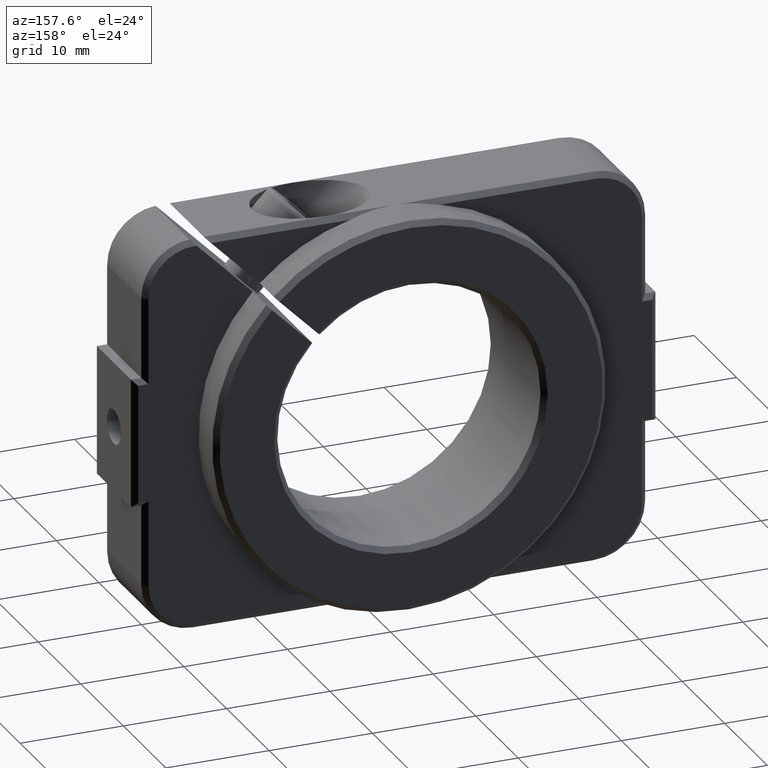
[diagram: clean part render]
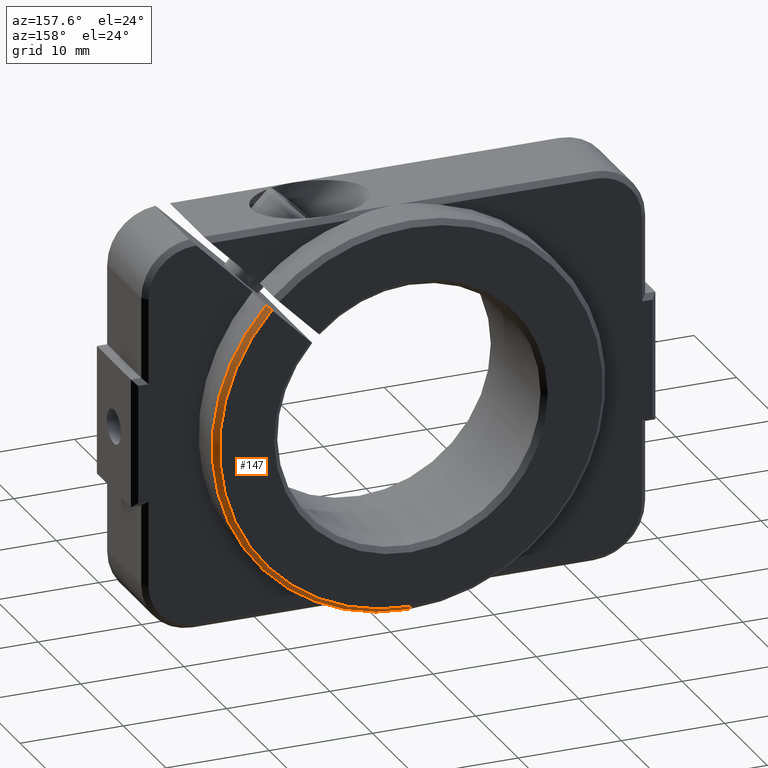
[diagram: same view with one face highlighted and labeled with its STEP entity id]
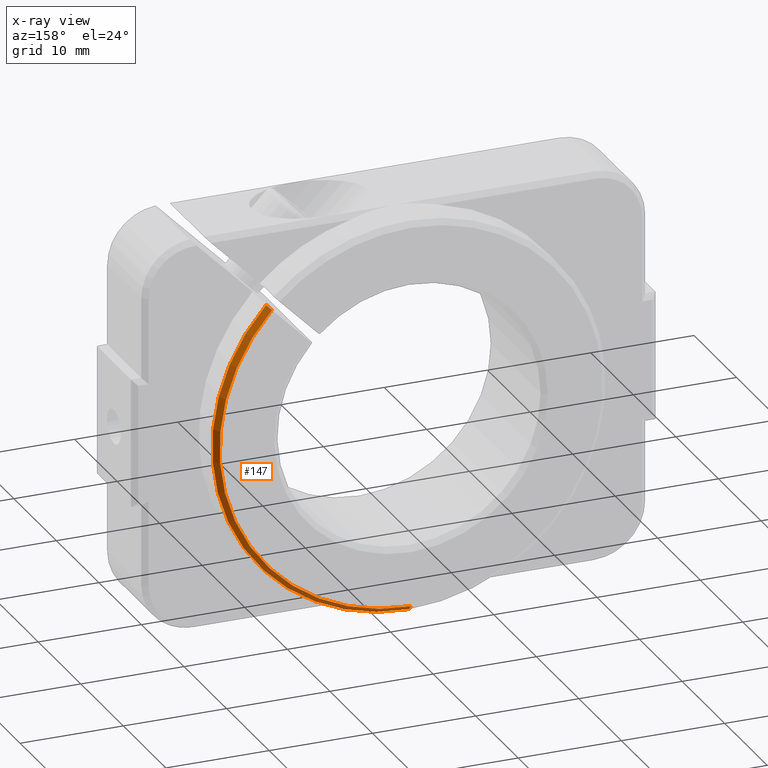
[diagram: x-ray of the same camera — body ghosted, the highlighted face saturated]
A machine part, auxiliary view. The second image highlights one B-rep face of the part: STEP entity #147.
The next image is the same camera in x-ray: the body ghosted, the highlighted face saturated — about 0% of this face is hidden behind the body in this view.
In plain terms, the highlighted conical surface has half-angle 45 deg.
Its self-contained STEP definition (entity closure, byte-faithful):
#7 = CARTESIAN_POINT ( 'NONE',  ( -2.583785812802642700, 8.546217940882606000, 32.25000000000001400 ) ) ;
#39 = DIRECTION ( 'NONE',  ( -8.878505979408856900E-016, 0.0000000000000000000, 1.000000000000000000 ) ) ;
#87 = CARTESIAN_POINT ( 'NONE',  ( 11.11761885948766300, 8.212885382051954500, 63.79429789110380300 ) ) ;
#94 = CARTESIAN_POINT ( 'NONE',  ( -2.583785812802642700, 8.546217940882606000, 32.25000000000001400 ) ) ;
#147 = ADVANCED_FACE ( 'NONE', ( #1028 ), #2718, .T. ) ;
#260 = ORIENTED_EDGE ( 'NONE', *, *, #2117, .F. ) ;
#588 = CIRCLE ( 'NONE', #2354, 18.54999999999998300 ) ;
#697 = DIRECTION ( 'NONE',  ( 0.0000000000000000000, 0.0000000000000000000, 1.000000000000000000 ) ) ;
#754 = DIRECTION ( 'NONE',  ( 0.0000000000000000000, 0.0000000000000000000, -1.000000000000000000 ) ) ;
#761 = CIRCLE ( 'NONE', #1272, 19.04999999999999700 ) ;
#768 = CARTESIAN_POINT ( 'NONE',  ( -2.583785812802640500, 8.046217940882591800, 31.75000000000000000 ) ) ;
#774 = ORIENTED_EDGE ( 'NONE', *, *, #1815, .F. ) ;
#784 = VERTEX_POINT ( 'NONE', #94 ) ;
#890 = EDGE_CURVE ( 'NONE', #2218, #784, #588, .T. ) ;
#897 = VERTEX_POINT ( 'NONE', #2660 ) ;
#1028 = FACE_OUTER_BOUND ( 'NONE', #1184, .T. ) ;
#1131 = LINE ( 'NONE', #7, #1649 ) ;
#1184 = EDGE_LOOP ( 'NONE', ( #774, #2324, #2443, #260 ) ) ;
#1272 = AXIS2_PLACEMENT_3D ( 'NONE', #2126, #1363, #39 ) ;
#1319 = DIRECTION ( 'NONE',  ( 0.0000000000000000000, -0.7071067811865474600, -0.7071067811865474600 ) ) ;
#1346 = VERTEX_POINT ( 'NONE', #768 ) ;
#1363 = DIRECTION ( 'NONE',  ( 0.0000000000000000000, -1.000000000000000000, 0.0000000000000000000 ) ) ;
#1610 = CARTESIAN_POINT ( 'NONE',  ( 10.88183263254074400, 8.546217940882606000, 63.55851166415688200 ) ) ;
#1634 = CARTESIAN_POINT ( 'NONE',  ( 10.99972603450576100, 8.379552069605937300, 63.67640506612189500 ) ) ;
#1644 = CARTESIAN_POINT ( 'NONE',  ( 10.88183263254074400, 8.546217940882606000, 63.55851166415688200 ) ) ;
#1649 = VECTOR ( 'NONE', #1319, 1000.000000000000100 ) ;
#1815 = EDGE_CURVE ( 'NONE', #784, #1346, #1131, .T. ) ;
#1827 = DIRECTION ( 'NONE',  ( 0.0000000000000000000, -1.000000000000000000, 0.0000000000000000000 ) ) ;
#1893 = EDGE_CURVE ( 'NONE', #897, #2218, #2390, .T. ) ;
#2117 = EDGE_CURVE ( 'NONE', #1346, #897, #761, .T. ) ;
#2126 = CARTESIAN_POINT ( 'NONE',  ( -2.583785812802642700, 8.046217940882591800, 50.79999999999999700 ) ) ;
#2209 = DIRECTION ( 'NONE',  ( 0.0000000000000000000, 1.000000000000000000, 0.0000000000000000000 ) ) ;
#2218 = VERTEX_POINT ( 'NONE', #1610 ) ;
#2281 = CARTESIAN_POINT ( 'NONE',  ( 11.23551115176378600, 8.046217940882591800, 63.91219018337992700 ) ) ;
#2324 = ORIENTED_EDGE ( 'NONE', *, *, #890, .F. ) ;
#2354 = AXIS2_PLACEMENT_3D ( 'NONE', #2629, #2209, #697 ) ;
#2390 = B_SPLINE_CURVE_WITH_KNOTS ( 'NONE', 3,
 ( #2281, #87, #1634, #1644 ),
 .UNSPECIFIED., .F., .F.,
 ( 4, 4 ),
 ( 0.0000000000000000000, 0.0007072319208856650400 ),
 .UNSPECIFIED. ) ;
#2443 = ORIENTED_EDGE ( 'NONE', *, *, #1893, .F. ) ;
#2629 = CARTESIAN_POINT ( 'NONE',  ( -2.583785812802642700, 8.546217940882606000, 50.79999999999999700 ) ) ;
#2657 = AXIS2_PLACEMENT_3D ( 'NONE', #2695, #1827, #754 ) ;
#2660 = CARTESIAN_POINT ( 'NONE',  ( 11.23551115176378600, 8.046217940882591800, 63.91219018337992700 ) ) ;
#2695 = CARTESIAN_POINT ( 'NONE',  ( -2.583785812802642700, 8.546217940882606000, 50.79999999999999700 ) ) ;
#2718 = CONICAL_SURFACE ( 'NONE', #2657, 18.54999999999998300, 0.7853981633974482800 ) ;